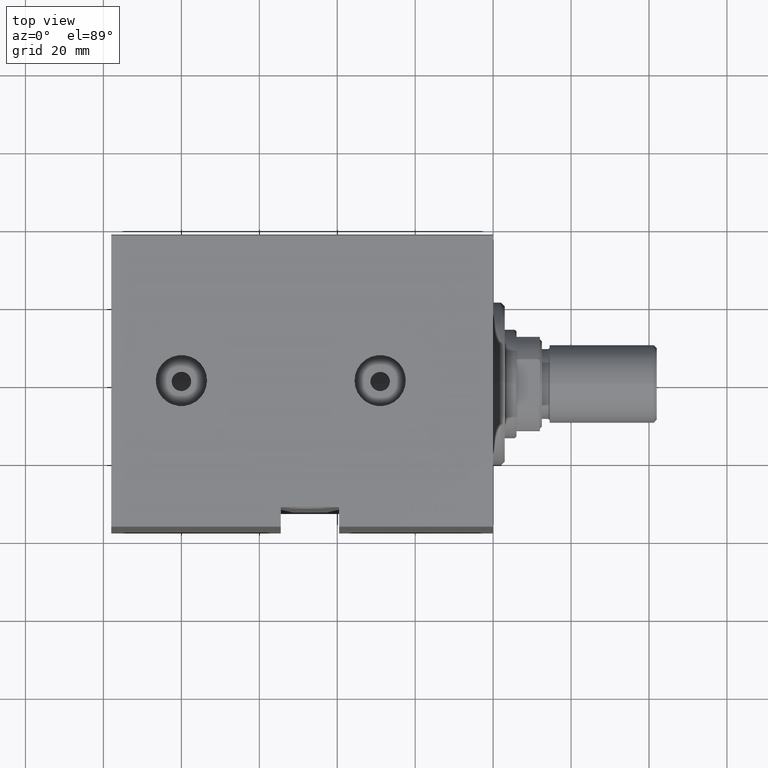
[diagram: clean part render]
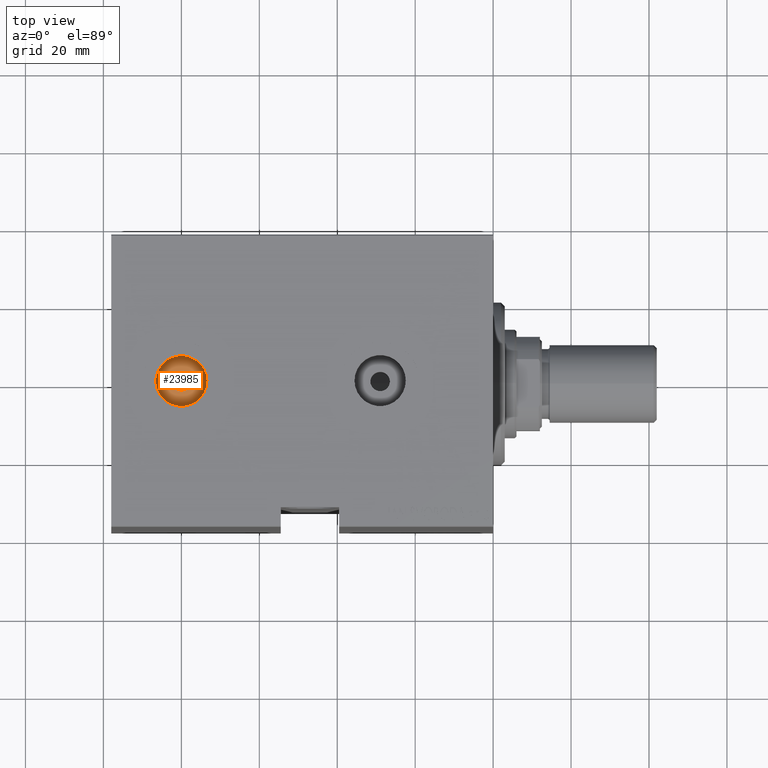
[diagram: same view with one face highlighted and labeled with its STEP entity id]
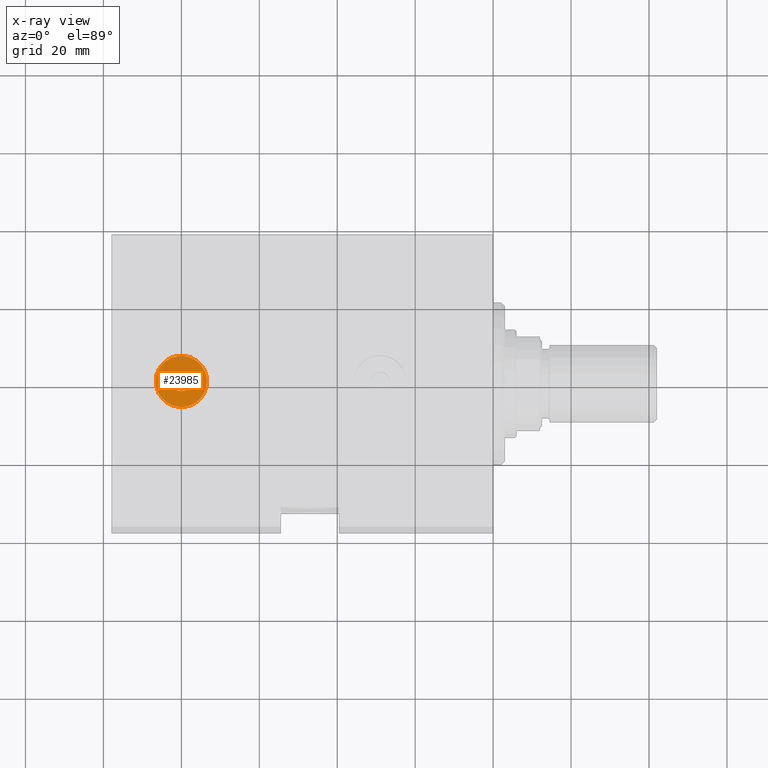
[diagram: x-ray of the same camera — body ghosted, the highlighted face saturated]
A machine part, top view. The second image highlights one B-rep face of the part: STEP entity #23985.
The next image is the same camera in x-ray: the body ghosted, the highlighted face saturated — about 0% of this face is hidden behind the body in this view.
In plain terms, the highlighted planar face has unit normal (0, 0, 1).
Its self-contained STEP definition (entity closure, byte-faithful):
#1830 = AXIS2_PLACEMENT_3D ( 'NONE', #26003, #12427, #38781 ) ;
#2213 = CARTESIAN_POINT ( 'NONE',  ( 86.58000000000001251, -9.251858538542975377E-15, 36.74000000000000909 ) ) ;
#2816 = CIRCLE ( 'NONE', #3525, 6.580000000000002736 ) ;
#3525 = AXIS2_PLACEMENT_3D ( 'NONE', #15363, #26079, #39280 ) ;
#3581 = CARTESIAN_POINT ( 'NONE',  ( 80.00000000000001421, -9.251858538542975377E-15, 36.74000000000000909 ) ) ;
#3916 = VERTEX_POINT ( 'NONE', #18977 ) ;
#5403 = AXIS2_PLACEMENT_3D ( 'NONE', #3581, #26618, #30796 ) ;
#8307 = EDGE_LOOP ( 'NONE', ( #19092, #37052 ) ) ;
#8714 = DIRECTION ( 'NONE',  ( 0.000000000000000000, 0.000000000000000000, 1.000000000000000000 ) ) ;
#9554 = PLANE ( 'NONE',  #25699 ) ;
#12427 = DIRECTION ( 'NONE',  ( 0.000000000000000000, 0.000000000000000000, 1.000000000000000000 ) ) ;
#15363 = CARTESIAN_POINT ( 'NONE',  ( 80.00000000000001421, -9.251858538542975377E-15, 36.74000000000000909 ) ) ;
#17002 = DIRECTION ( 'NONE',  ( 0.000000000000000000, 0.000000000000000000, 1.000000000000000000 ) ) ;
#18042 = VERTEX_POINT ( 'NONE', #40403 ) ;
#18778 = DIRECTION ( 'NONE',  ( 1.000000000000000000, 0.000000000000000000, -0.000000000000000000 ) ) ;
#18977 = CARTESIAN_POINT ( 'NONE',  ( 82.50000000000001421, -9.251858538542975377E-15, 36.74000000000000909 ) ) ;
#19092 = ORIENTED_EDGE ( 'NONE', *, *, #27143, .F. ) ;
#21070 = EDGE_CURVE ( 'NONE', #27053, #23437, #34867, .T. ) ;
#22847 = EDGE_CURVE ( 'NONE', #18042, #3916, #27761, .T. ) ;
#22939 = FACE_BOUND ( 'NONE', #8307, .T. ) ;
#23437 = VERTEX_POINT ( 'NONE', #2213 ) ;
#23985 = ADVANCED_FACE ( 'NONE', ( #22939, #39630 ), #9554, .T. ) ;
#25042 = CIRCLE ( 'NONE', #39762, 2.500000000000002220 ) ;
#25699 = AXIS2_PLACEMENT_3D ( 'NONE', #36332, #8714, #18778 ) ;
#26003 = CARTESIAN_POINT ( 'NONE',  ( 80.00000000000001421, -9.251858538542975377E-15, 36.74000000000000909 ) ) ;
#26053 = ORIENTED_EDGE ( 'NONE', *, *, #21070, .T. ) ;
#26079 = DIRECTION ( 'NONE',  ( 0.000000000000000000, 0.000000000000000000, 1.000000000000000000 ) ) ;
#26434 = DIRECTION ( 'NONE',  ( 1.000000000000000000, 0.000000000000000000, 0.000000000000000000 ) ) ;
#26618 = DIRECTION ( 'NONE',  ( 0.000000000000000000, 0.000000000000000000, 1.000000000000000000 ) ) ;
#27053 = VERTEX_POINT ( 'NONE', #29096 ) ;
#27143 = EDGE_CURVE ( 'NONE', #3916, #18042, #25042, .T. ) ;
#27761 = CIRCLE ( 'NONE', #1830, 2.500000000000002220 ) ;
#29096 = CARTESIAN_POINT ( 'NONE',  ( 73.42000000000001592, -8.446040944704016336E-15, 36.74000000000000909 ) ) ;
#29949 = CARTESIAN_POINT ( 'NONE',  ( 80.00000000000001421, -9.251858538542975377E-15, 36.74000000000000909 ) ) ;
#30796 = DIRECTION ( 'NONE',  ( 1.000000000000000000, 0.000000000000000000, 0.000000000000000000 ) ) ;
#34867 = CIRCLE ( 'NONE', #5403, 6.580000000000002736 ) ;
#36332 = CARTESIAN_POINT ( 'NONE',  ( 80.00000000000001421, -9.251858538542975377E-15, 36.74000000000000909 ) ) ;
#37052 = ORIENTED_EDGE ( 'NONE', *, *, #22847, .F. ) ;
#38781 = DIRECTION ( 'NONE',  ( 1.000000000000000000, 0.000000000000000000, 0.000000000000000000 ) ) ;
#39280 = DIRECTION ( 'NONE',  ( 1.000000000000000000, 0.000000000000000000, 0.000000000000000000 ) ) ;
#39630 = FACE_OUTER_BOUND ( 'NONE', #41319, .T. ) ;
#39762 = AXIS2_PLACEMENT_3D ( 'NONE', #29949, #17002, #26434 ) ;
#39790 = EDGE_CURVE ( 'NONE', #23437, #27053, #2816, .T. ) ;
#40403 = CARTESIAN_POINT ( 'NONE',  ( 77.50000000000001421, -8.945696838756139085E-15, 36.74000000000000909 ) ) ;
#41319 = EDGE_LOOP ( 'NONE', ( #41489, #26053 ) ) ;
#41489 = ORIENTED_EDGE ( 'NONE', *, *, #39790, .T. ) ;